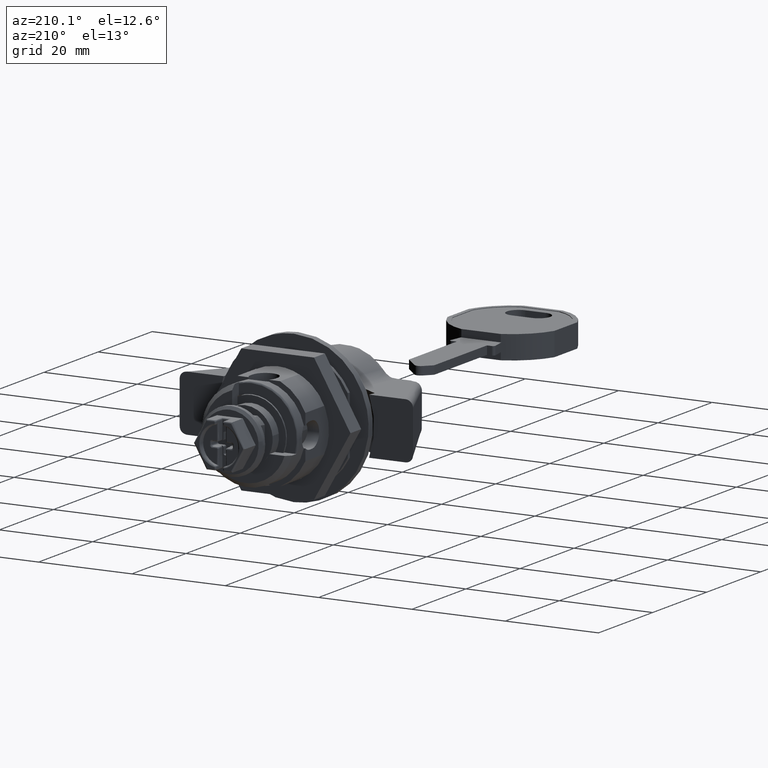
[diagram: clean part render]
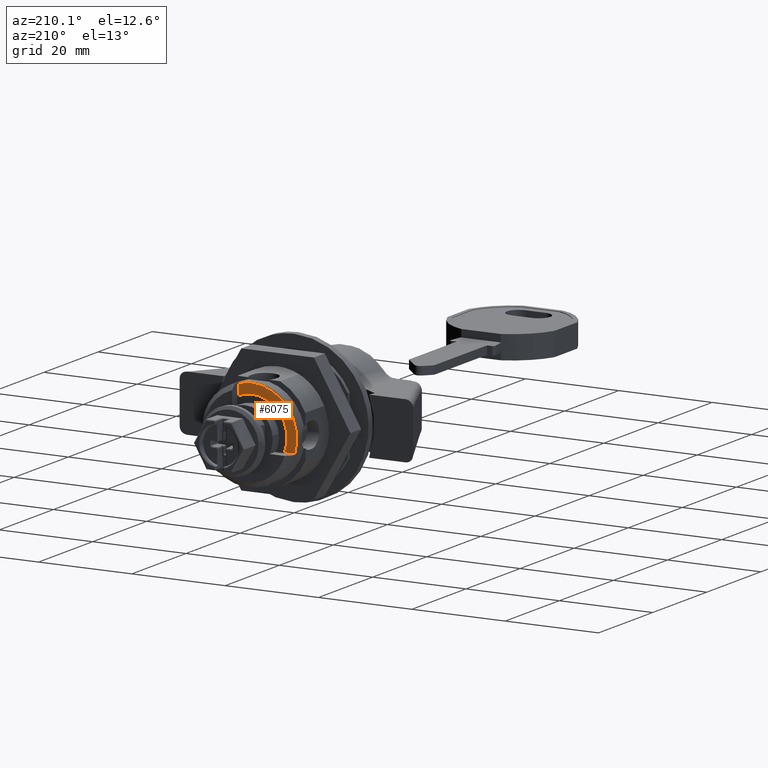
[diagram: same view with one face highlighted and labeled with its STEP entity id]
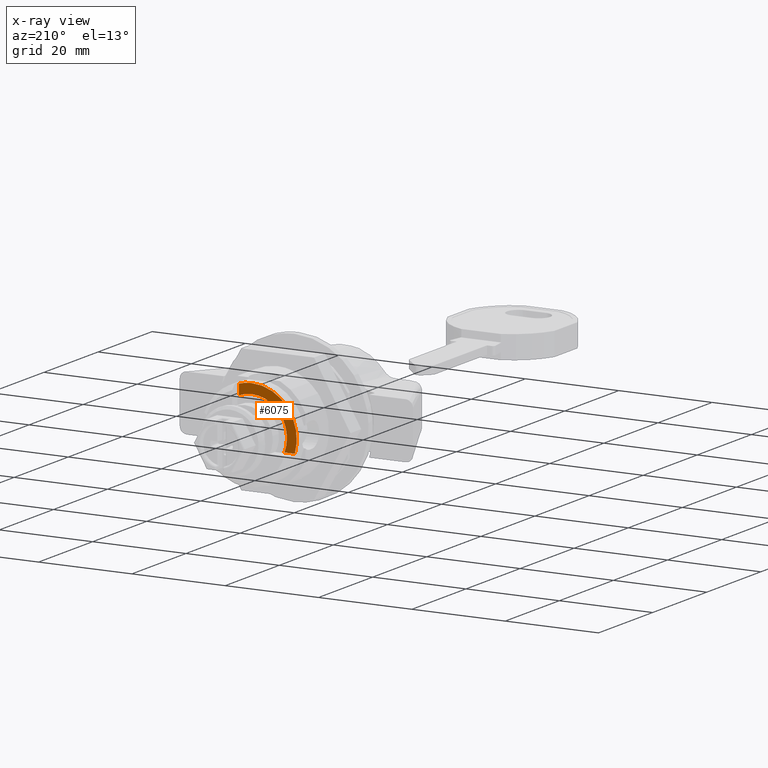
[diagram: x-ray of the same camera — body ghosted, the highlighted face saturated]
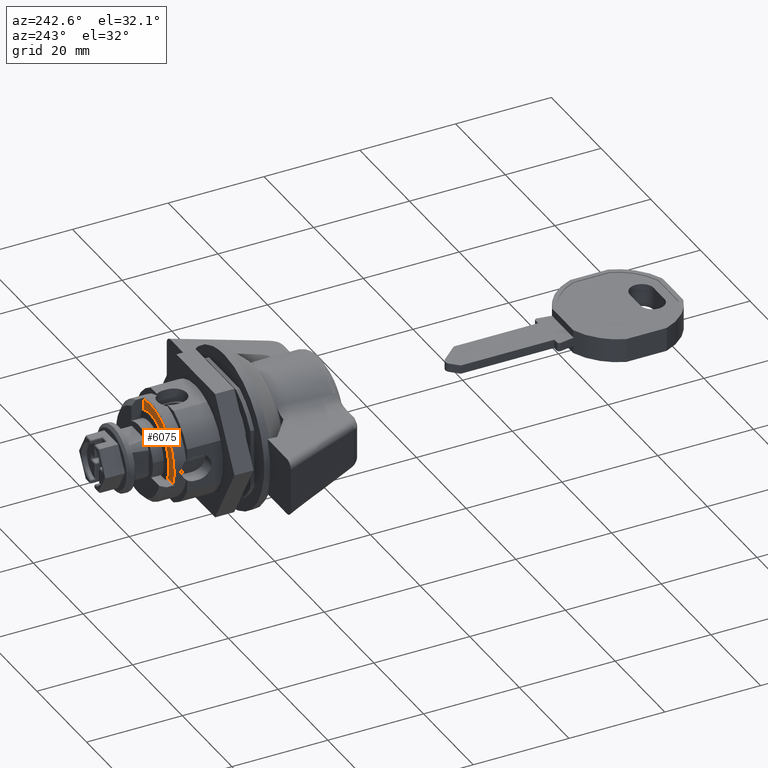
[diagram: same view with one face highlighted and labeled with its STEP entity id]
A machine part, auxiliary view. The second image highlights one B-rep face of the part: STEP entity #6075.
The next image is the same camera in x-ray: the body ghosted, the highlighted face saturated — about 0% of this face is hidden behind the body in this view.
A second angle (auxiliary view) of the same face is appended — the face is thin or edge-on in the first view.
In plain terms, the highlighted face is a freeform B-spline surface patch.
Its self-contained STEP definition (entity closure, byte-faithful):
#3917=CARTESIAN_POINT('',(15.500000730530500,5.342156474790260,5.264158451154039));
#3918=VERTEX_POINT('',#3917);
#3924=CARTESIAN_POINT('',(15.500000730530500,-2.800000132992805,6.957729461199270));
#3925=VERTEX_POINT('',#3924);
#3926=CARTESIAN_POINT('',(15.500000730530497,5.342156474790260,5.264158451154039));
#3927=CARTESIAN_POINT('',(15.500000730530493,5.322800628466728,5.283801089331485));
#3928=CARTESIAN_POINT('',(15.500000730530500,5.303300858899175,5.303300858899037));
#3929=CARTESIAN_POINT('',(15.500000730530497,1.798355353644639,8.808246364153664));
#3930=CARTESIAN_POINT('',(15.500000730530500,-2.800000132992804,6.957729461199270));
#3938=(BOUNDED_CURVE()B_SPLINE_CURVE(2,(#3926,#3927,#3928,#3929,#3930),.UNSPECIFIED.,.F.,.U.)B_SPLINE_CURVE_WITH_KNOTS((3,2,3),(0.496669306139374,0.500000000000000,1.0),.UNSPECIFIED.)CURVE()GEOMETRIC_REPRESENTATION_ITEM()RATIONAL_B_SPLINE_CURVE((0.997806651748067,0.998895971512221,1.0,0.834264490526951,1.0))REPRESENTATION_ITEM(''));
#3939=EDGE_CURVE('',#3918,#3925,#3938,.T.);
#4316=CARTESIAN_POINT('',(15.500000730530600,6.957729461199199,-2.800000132992985));
#4317=VERTEX_POINT('',#4316);
#4323=CARTESIAN_POINT('',(15.500000730530600,6.957729461199199,-2.800000132992985));
#4324=CARTESIAN_POINT('',(15.500000730530493,8.793489989817450,1.761687190936096));
#4325=CARTESIAN_POINT('',(15.500000730530497,5.342156474790260,5.264158451154039));
#4333=(BOUNDED_CURVE()B_SPLINE_CURVE(2,(#4323,#4324,#4325),.UNSPECIFIED.,.F.,.U.)B_SPLINE_CURVE_WITH_KNOTS((3,3),(0.0,0.496669306139374),.UNSPECIFIED.)CURVE()GEOMETRIC_REPRESENTATION_ITEM()RATIONAL_B_SPLINE_CURVE((1.0,0.835368519014730,0.997806651748067))REPRESENTATION_ITEM(''));
#4334=EDGE_CURVE('',#4317,#3918,#4333,.T.);
#5421=CARTESIAN_POINT('',(15.500000730530600,9.182592677645859,-2.800000132992930));
#5422=VERTEX_POINT('',#5421);
#5445=CARTESIAN_POINT('',(15.500000730530600,-2.800000132992805,9.182592677645900));
#5446=VERTEX_POINT('',#5445);
#5468=CARTESIAN_POINT('',(15.500000730530600,9.182592677645859,-2.800000132992930));
#5469=CARTESIAN_POINT('',(15.500000730530497,10.863598163570739,2.712852700209162));
#5470=CARTESIAN_POINT('',(15.500000730530500,6.788225431890028,6.788225431889931));
#5471=CARTESIAN_POINT('',(15.500000730530497,2.712852700209317,10.863598163570702));
#5472=CARTESIAN_POINT('',(15.500000730530600,-2.800000132992805,9.182592677645900));
#5480=(BOUNDED_CURVE()B_SPLINE_CURVE(2,(#5468,#5469,#5470,#5471,#5472),.UNSPECIFIED.,.F.,.U.)B_SPLINE_CURVE_WITH_KNOTS((3,2,3),(0.0,0.500000000000000,1.0),.UNSPECIFIED.)CURVE()GEOMETRIC_REPRESENTATION_ITEM()RATIONAL_B_SPLINE_CURVE((1.0,0.857357077764146,1.0,0.857357077764146,1.0))REPRESENTATION_ITEM(''));
#5481=EDGE_CURVE('',#5422,#5446,#5480,.T.);
#6024=CARTESIAN_POINT('',(15.500000730530600,9.182592677645859,-2.800000132992930));
#6025=CARTESIAN_POINT('',(15.500000730530600,6.957729461199199,-2.800000132992985));
#6026=QUASI_UNIFORM_CURVE('',1,(#6024,#6025),.UNSPECIFIED.,.F.,.U.);
#6027=EDGE_CURVE('',#5422,#4317,#6026,.T.);
#6054=CARTESIAN_POINT('',(15.500000730530500,-2.800000132992805,6.957729461199270));
#6055=CARTESIAN_POINT('',(15.500000730530600,-2.800000132992805,9.182592677645900));
#6056=QUASI_UNIFORM_CURVE('',1,(#6054,#6055),.UNSPECIFIED.,.F.,.U.);
#6057=EDGE_CURVE('',#3925,#5446,#6056,.T.);
#6063=CARTESIAN_POINT('',(15.500000730530500,-3.419366384616545,-3.419366387592425));
#6064=CARTESIAN_POINT('',(15.500000730530500,10.219089248878010,-3.419366387592425));
#6065=CARTESIAN_POINT('',(15.500000730530500,-3.419366384616545,10.219089311427110));
#6066=CARTESIAN_POINT('',(15.500000730530500,10.219089248878010,10.219089311427110));
#6067=B_SPLINE_SURFACE_WITH_KNOTS('',1,1,((#6063,#6065),(#6064,#6066)),.UNSPECIFIED.,.F.,.F.,.U.,(2,2),(2,2),(0.0,13.638455633494550),(0.0,13.638455699019531),.UNSPECIFIED.);
#6068=ORIENTED_EDGE('',*,*,#6027,.F.);
#6069=ORIENTED_EDGE('',*,*,#5481,.T.);
#6070=ORIENTED_EDGE('',*,*,#6057,.F.);
#6071=ORIENTED_EDGE('',*,*,#3939,.F.);
#6072=ORIENTED_EDGE('',*,*,#4334,.F.);
#6073=EDGE_LOOP('',(#6068,#6069,#6070,#6071,#6072));
#6074=FACE_OUTER_BOUND('',#6073,.T.);
#6075=ADVANCED_FACE('',(#6074),#6067,.T.);